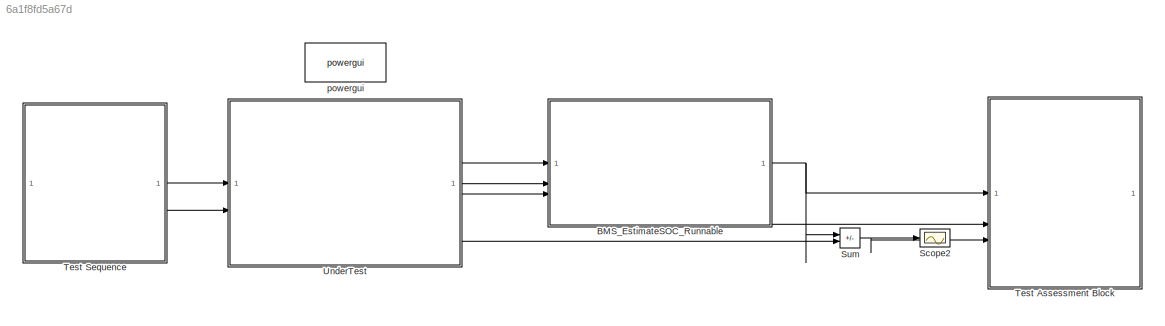
MODEL slx_6a1f8fd5a67d
KIND model
CONFIG AbsTol = auto
CONFIG EnableMultiTasking = on
CONFIG FixedStep = auto
CONFIG MaxStep = auto
CONFIG MinStep = auto
CONFIG RelTol = 1e-3
CONFIG SampleTimeConstraint = Unconstrained
CONFIG SolverName = FixedStepDiscrete
CONFIG StartTime = 0.0
CONFIG StopTime = 10.0
WORKSPACE source: external: MAT-File  (data not in archive)
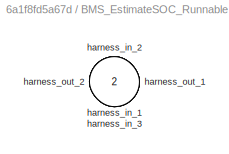
BLOCK [SubSystem] BMS_EstimateSOC_Runnable
  Priority = 3
  Tag = __SL_testing_harness_stub_
BLOCK [Inport] BMS_EstimateSOC_Runnable/harness_in_1
BLOCK [Inport] BMS_EstimateSOC_Runnable/harness_in_2
  Port = 2
BLOCK [Inport] BMS_EstimateSOC_Runnable/harness_in_3
  Port = 3
BLOCK [Outport] BMS_EstimateSOC_Runnable/harness_out_1
BLOCK [Outport] BMS_EstimateSOC_Runnable/harness_out_2
  Port = 2
BLOCK [Scope] Scope2
  Floating = off
  NumInputPorts = 1
  ScopeSpecificationString = Simulink.scopes.TimeScopeBlockCfg('CurrentConfiguration', extmgr.ConfigurationSet(extmgr.Configuration('Core','General UI',true),extmgr.Configuration('Core','Source UI',true),extmgr.Configuration('Sources','WiredSimulink',true),extmgr.Configuration('Visuals','Time Domain',true,'SerializedDisplays',{struct('MinYLimReal','-95.93536','MaxYLimReal','13.41825','YLabelReal','','MinYLimMag','0.00000','Ma...<+1445ch>
BLOCK [Sum] Sum
  IconShape = rectangular
  Inputs = +-
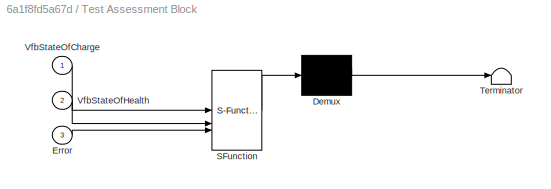
BLOCK [SubSystem] Test Assessment Block
  ErrorFcn = Stateflow.Translate.translate
  PermitHierarchicalResolution = ExplicitOnly
  SFBlockType = Test Sequence
  ShowPortLabels = none
  Tag = __SLT_ASMT__
  TreatAsAtomicUnit = on
BLOCK [Demux] Test Assessment Block/ Demux 
  Outputs = 1
BLOCK [S-Function] Test Assessment Block/ SFunction 
  EnableBusSupport = on
  FunctionName = sf_sfun
  PortCounts = [3 1]
  SFcnIsStateOwnerBlock = off
  SFunctionDeploymentMode = off
  Tag = Stateflow S-Function 1
BLOCK [Terminator] Test Assessment Block/ Terminator 
BLOCK [Inport] Test Assessment Block/Error
  Port = 3
BLOCK [Inport] Test Assessment Block/VfbStateOfCharge
BLOCK [Inport] Test Assessment Block/VfbStateOfHealth
  Port = 2
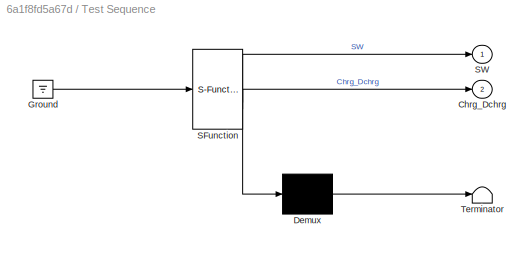
BLOCK [SubSystem] Test Sequence
  ErrorFcn = Stateflow.Translate.translate
  PermitHierarchicalResolution = ExplicitOnly
  SFBlockType = Test Sequence
  ShowPortLabels = none
  TreatAsAtomicUnit = on
BLOCK [Demux] Test Sequence/ Demux 
  Outputs = 1
BLOCK [Ground] Test Sequence/ Ground 
BLOCK [S-Function] Test Sequence/ SFunction 
  EnableBusSupport = on
  FunctionName = sf_sfun
  Parameters = 1
  PortCounts = [1 3]
  SFcnIsStateOwnerBlock = off
  SFunctionDeploymentMode = off
  Tag = Stateflow S-Function 4
BLOCK [Terminator] Test Sequence/ Terminator 
BLOCK [Outport] Test Sequence/Chrg_Dchrg
  Port = 2
BLOCK [Outport] Test Sequence/SW
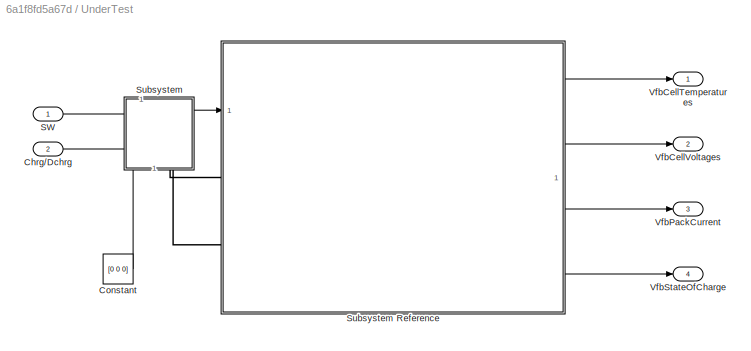
BLOCK [SubSystem] UnderTest
BLOCK [Inport] UnderTest/Chrg//Dchrg
  Port = 2
BLOCK [Constant] UnderTest/Constant
  Value = [0 0 0]
BLOCK [Inport] UnderTest/SW
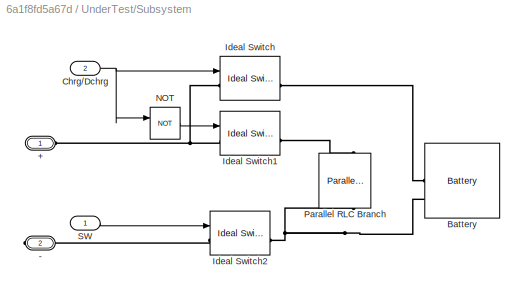
BLOCK [SubSystem] UnderTest/Subsystem
  NameLocation = left
  PortSchema = {"entries":[{"content":{"sides":[{"content":{"connectorIds":["LConn1"]},"type":"ConnectorPlacement.EquallySpacedRectSide","uuid":"a461fc5f-bdec-4de1-a769-19a6913359cb"},{"content":{"connectorIds":["RConn1"],"side":"RIGHT"},"type":"ConnectorPlacement.EquallySpacedRectSide","uuid":"53dfe770-afde-41f9-b1fd-6523bad3a9ef"},{"content":{"connectorIds":[],"side":"TOP"},"type":"ConnectorPlacement.EquallySp...<+400ch>
BLOCK [SubSystem] UnderTest/Subsystem Reference
  PortSchema = {"entries":[{"content":{"sides":[{"content":{"connectorIds":["LConn1","LConn2","In1"]},"type":"ConnectorPlacement.EquallySpacedRectSide","uuid":"5451cb71-15b5-4b08-b1e3-78543f6c5322"},{"content":{"connectorIds":["Out2","Out1","Out4","Out3"],"side":"RIGHT"},"type":"ConnectorPlacement.EquallySpacedRectSide","uuid":"e4bd4e19-96bf-4958-bcea-cb5b9e999de9"},{"content":{"connectorIds":[],"side":"TOP"},"t...<+279ch>
  ReferencedSubsystem = Batter_Pack_Sim
BLOCK [PMIOPort] UnderTest/Subsystem/+
  NameLocation = left
  Side = Left
BLOCK [PMIOPort] UnderTest/Subsystem/-
  NameLocation = left
  Port = 2
  Side = Right
BLOCK [Reference] UnderTest/Subsystem/Battery  REF=spsBatteryLib/Battery
  LibrarySourceBlock = sps_lib/Sources/Battery
  SourceBlock = spsBatteryLib/Battery
  SourceType = Battery
BLOCK [Inport] UnderTest/Subsystem/Chrg//Dchrg
  NameLocation = left
  Port = 2
BLOCK [Reference] UnderTest/Subsystem/Ideal Switch  REF=spsIdealSwitchLib/Ideal Switch
  LibrarySourceBlock = sps_lib/Power Electronics/Ideal Switch
  SourceBlock = spsIdealSwitchLib/Ideal Switch
  SourceType = Ideal Switch
BLOCK [Reference] UnderTest/Subsystem/Ideal Switch1  REF=spsIdealSwitchLib/Ideal Switch
  LibrarySourceBlock = sps_lib/Power Electronics/Ideal Switch
  SourceBlock = spsIdealSwitchLib/Ideal Switch
  SourceType = Ideal Switch
BLOCK [Reference] UnderTest/Subsystem/Ideal Switch2  REF=spsIdealSwitchLib/Ideal Switch
  LibrarySourceBlock = sps_lib/Power Electronics/Ideal Switch
  SourceBlock = spsIdealSwitchLib/Ideal Switch
  SourceType = Ideal Switch
BLOCK [Logic] UnderTest/Subsystem/NOT
  AllPortsSameDT = off
  IconShape = distinctive
  Operator = NOT
  OutDataTypeStr = boolean
BLOCK [Reference] UnderTest/Subsystem/Parallel RLC Branch  REF=spsParallelRLCBranchLib/Parallel RLC Branch
  AttributesFormatString = \n
  LibrarySourceBlock = sps_lib/Passives/Parallel RLC Branch
  NameLocation = left
  SourceBlock = spsParallelRLCBranchLib/Parallel RLC Branch
  SourceType = Parallel RLC Branch
BLOCK [Inport] UnderTest/Subsystem/SW
  NameLocation = left
BLOCK [Outport] UnderTest/VfbCellTemperatures
BLOCK [Outport] UnderTest/VfbCellVoltages
  Port = 2
BLOCK [Outport] UnderTest/VfbPackCurrent
  Port = 3
BLOCK [Outport] UnderTest/VfbStateOfCharge
  Port = 4
BLOCK [Reference] powergui  REF=spspowerguiLib/powergui
  LibrarySourceBlock = sps_lib/powergui
  Priority = 1
  SourceBlock = spspowerguiLib/powergui
  SourceType = PSB option menu block
NET BMS_EstimateSOC_Runnable:1 -> Sum:1, Test Assessment Block:1
LINE BMS_EstimateSOC_Runnable:2 -> Test Assessment Block:2
NET Sum:1 -> Scope2:1, Test Assessment Block:3
LINE Test Sequence:1 -> UnderTest:1
LINE Test Sequence:2 -> UnderTest:2
LINE UnderTest/Chrg//Dchrg:1 -> UnderTest/Subsystem:2
LINE UnderTest/Constant:1 -> UnderTest/Subsystem Reference:1
LINE UnderTest/SW:1 -> UnderTest/Subsystem:1
LINE UnderTest/Subsystem Reference:1 -> UnderTest/VfbCellVoltages:1
LINE UnderTest/Subsystem Reference:2 -> UnderTest/VfbCellTemperatures:1
LINE UnderTest/Subsystem Reference:3 -> UnderTest/VfbStateOfCharge:1
LINE UnderTest/Subsystem Reference:4 -> UnderTest/VfbPackCurrent:1
NET UnderTest/Subsystem/Chrg//Dchrg:1 -> UnderTest/Subsystem/Ideal Switch:1, UnderTest/Subsystem/NOT:1
LINE UnderTest/Subsystem/NOT:1 -> UnderTest/Subsystem/Ideal Switch1:1
LINE UnderTest/Subsystem/SW:1 -> UnderTest/Subsystem/Ideal Switch2:1
LINE UnderTest:1 -> BMS_EstimateSOC_Runnable:1
LINE UnderTest:2 -> BMS_EstimateSOC_Runnable:2
LINE UnderTest:3 -> BMS_EstimateSOC_Runnable:3
LINE UnderTest:4 -> Sum:2
PLINE UnderTest/Subsystem Reference:LConn1 -- UnderTest/Subsystem:LConn1
PLINE UnderTest/Subsystem Reference:LConn2 -- UnderTest/Subsystem:RConn1
PNET net1: UnderTest/Subsystem/+:RConn1 -- UnderTest/Subsystem/Ideal Switch1:LConn1 -- UnderTest/Subsystem/Ideal Switch:LConn1
PLINE UnderTest/Subsystem/-:RConn1 -- UnderTest/Subsystem/Ideal Switch2:LConn1
PLINE UnderTest/Subsystem/Battery:LConn1 -- UnderTest/Subsystem/Ideal Switch:RConn1
PNET net2: UnderTest/Subsystem/Battery:LConn2 -- UnderTest/Subsystem/Ideal Switch2:RConn1 -- UnderTest/Subsystem/Parallel RLC Branch:RConn1
PLINE UnderTest/Subsystem/Ideal Switch1:RConn1 -- UnderTest/Subsystem/Parallel RLC Branch:LConn1
note: NET lines group one-source signal fan-out (src -> all destinations, sorted); 1:1 wires keep LINE; PNET lines group multi-terminal physical nets as a canonical sorted terminal list (undirected conserving connections); 2-terminal nets keep the pairwise PLINE form
CHART Test Assessment Block states=3 transitions=10
  STATE_LABEL 'Run\n\n'
  STATE_LABEL 'step_1_1'
  STATE_LABEL 'step_1_2'
  STATE_LABEL '[t < 5\n]'
  STATE_LABEL '[~in(Run.step_1_1)]'
  STATE_LABEL '[~in(Run.step_1_2)]'
  STATE_LABEL 'step_1_1'
  STATE_LABEL 'step_1_2'
CHART Test Sequence states=20 transitions=20
  STATE_LABEL 'Cold_Start'
  STATE_LABEL 'Run\nSW = 1;\nChrg_Dchrg = 0;'
  STATE_LABEL 'step_1\nSW = 0;\nChrg_Dchrg = 0;'
  STATE_LABEL 'step_2'
  STATE_LABEL '[\nafter(100, sec)\n]'
  STATE_LABEL '[\nafter(100, sec)\n]'
  STATE_LABEL 'Run\nSW = 1;\nChrg_Dchrg = 0;'
  STATE_LABEL 'step_1\nSW = 0;\nChrg_Dchrg = 0;'
  STATE_LABEL 'step_2'
  STATE_LABEL 'High_Puls_Discharge'
  STATE_LABEL 'Run\nSW = 1;\nChrg_Dchrg = 0;'
  STATE_LABEL 'step_1\nSW = 0;\nChrg_Dchrg = 0;'
  STATE_LABEL 'step_2'
  STATE_LABEL '[\nafter(100, sec)\n]'
  STATE_LABEL '[\nafter(100, sec)\n]'
  STATE_LABEL 'Run\nSW = 1;\nChrg_Dchrg = 0;'
  STATE_LABEL 'step_1\nSW = 0;\nChrg_Dchrg = 0;'
  STATE_LABEL 'step_2'
  STATE_LABEL 'Regenerative_Braking'
  STATE_LABEL 'Run\nSW = 1;\nChrg_Dchrg = 0;'
  STATE_LABEL 'step_1\nSW = 0;\nChrg_Dchrg = 0;'
  STATE_LABEL 'step_2'
  STATE_LABEL '[\nafter(100, sec)\n]'
  STATE_LABEL '[\nafter(100, sec)\n]'
  STATE_LABEL 'Run\nSW = 1;\nChrg_Dchrg = 0;'
  STATE_LABEL 'step_1\nSW = 0;\nChrg_Dchrg = 0;'
  STATE_LABEL 'step_2'
  STATE_LABEL 'Idle_Rest'
  STATE_LABEL 'Run\nSW = 1;\nChrg_Dchrg = 0;'
  STATE_LABEL 'step_1\nSW = 0;\nChrg_Dchrg = 0;'
  STATE_LABEL 'step_2'
  STATE_LABEL '[\nafter(100, sec)\n]'
  STATE_LABEL '[\nafter(100, sec)\n]'
  STATE_LABEL 'Run\nSW = 1;\nChrg_Dchrg = 0;'
  STATE_LABEL 'step_1\nSW = 0;\nChrg_Dchrg = 0;'
  STATE_LABEL 'step_2'
  STATE_LABEL 'Dynamic_Test'
  STATE_LABEL 'Run\nSW = 1;\nChrg_Dchrg = 0;'
  STATE_LABEL 'step_1\nSW = 0;\nChrg_Dchrg = 0;'
  STATE_LABEL 'step_2'
